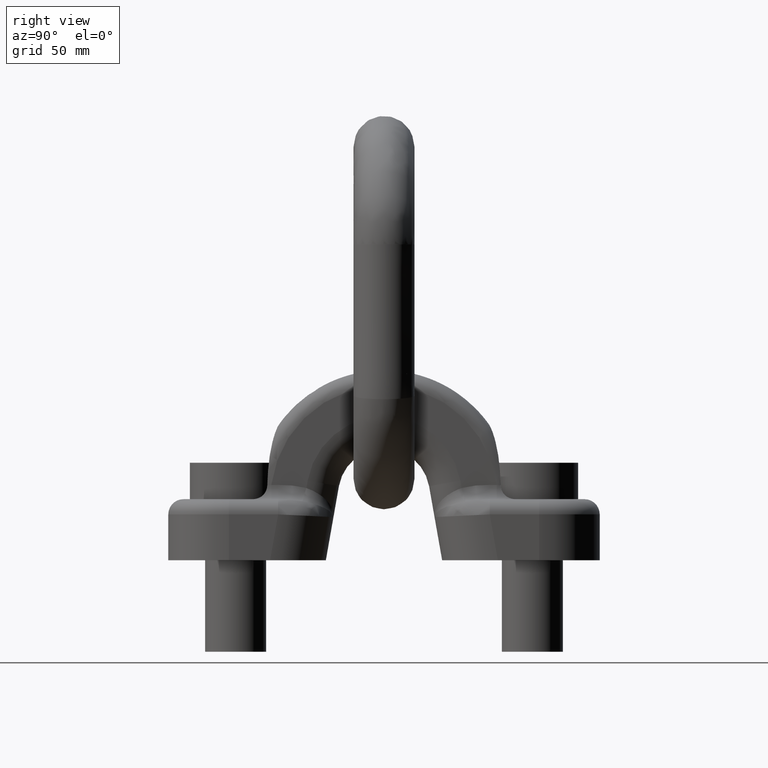
[diagram: clean part render]
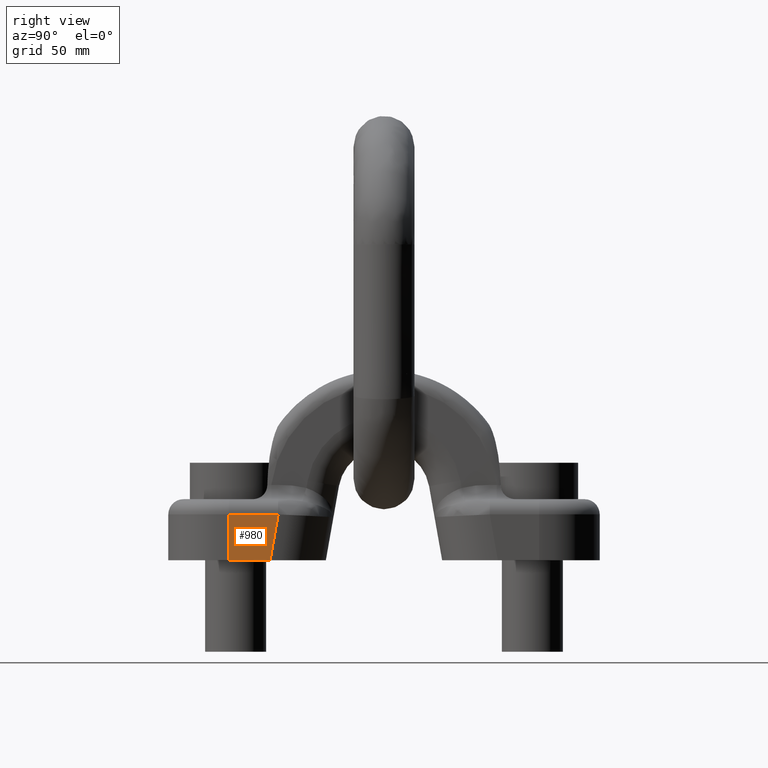
[diagram: same view with one face highlighted and labeled with its STEP entity id]
A machine part, right view. The second image highlights one B-rep face of the part: STEP entity #980.
In plain terms, the highlighted planar face has unit normal (-1, 0, 0).
Its self-contained STEP definition (entity closure, byte-faithful):
#745=PLANE('',#3567);
#836=FACE_OUTER_BOUND('',#1535,.T.);
#980=ADVANCED_FACE('',(#836),#745,.F.);
#1191=LINE('',#5150,#1317);
#1192=LINE('',#5153,#1318);
#1193=LINE('',#5155,#1319);
#1194=LINE('',#5157,#1320);
#1317=VECTOR('',#3842,1.);
#1318=VECTOR('',#3843,1.);
#1319=VECTOR('',#3844,1.);
#1320=VECTOR('',#3845,1.);
#1535=EDGE_LOOP('',(#2149,#2150,#2151,#2152));
#2149=ORIENTED_EDGE('',*,*,#3209,.T.);
#2150=ORIENTED_EDGE('',*,*,#3210,.T.);
#2151=ORIENTED_EDGE('',*,*,#3211,.T.);
#2152=ORIENTED_EDGE('',*,*,#3212,.T.);
#2931=VERTEX_POINT('',#5151);
#2932=VERTEX_POINT('',#5152);
#2933=VERTEX_POINT('',#5154);
#2934=VERTEX_POINT('',#5156);
#3209=EDGE_CURVE('',#2931,#2932,#1191,.T.);
#3210=EDGE_CURVE('',#2932,#2933,#1192,.T.);
#3211=EDGE_CURVE('',#2933,#2934,#1193,.T.);
#3212=EDGE_CURVE('',#2934,#2931,#1194,.T.);
#3567=AXIS2_PLACEMENT_3D('',#5158,#3846,#3847);
#3842=DIRECTION('',(2.63371864795117E-17,0.17364817766693,0.984807753012208));
#3843=DIRECTION('',(-1.51669812107262E-16,-1.,4.04207411878091E-16));
#3844=DIRECTION('',(0.,0.,-1.));
#3845=DIRECTION('',(1.51669812107262E-16,1.,0.));
#3846=DIRECTION('',(-1.,1.51669812107262E-16,0.));
#3847=DIRECTION('',(-1.52655665885959E-16,-1.,0.));
#5150=CARTESIAN_POINT('',(36.,-58.4975805289252,49.3147017534157));
#5151=CARTESIAN_POINT('',(36.,-67.1930929936434,0.));
#5152=CARTESIAN_POINT('',(36.,-62.4322645145148,27.));
#5153=CARTESIAN_POINT('',(36.,-91.5000000000001,27.));
#5154=CARTESIAN_POINT('',(36.,-91.5,27.));
#5155=CARTESIAN_POINT('',(36.,-91.5,226.));
#5156=CARTESIAN_POINT('',(36.,-91.5,0.));
#5157=CARTESIAN_POINT('',(36.,-91.5,0.));
#5158=CARTESIAN_POINT('',(36.,-91.5,226.));